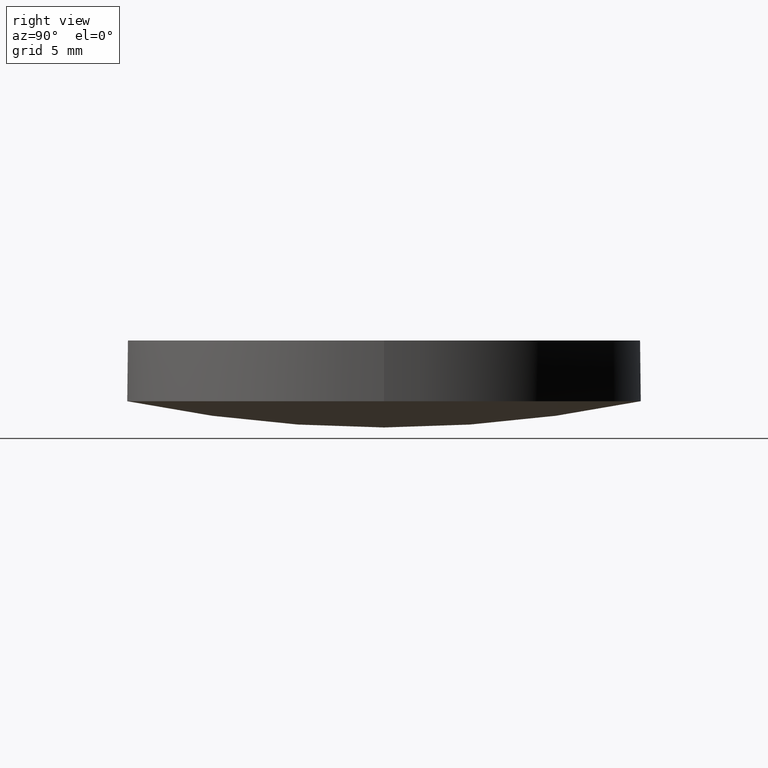
[diagram: clean part render]
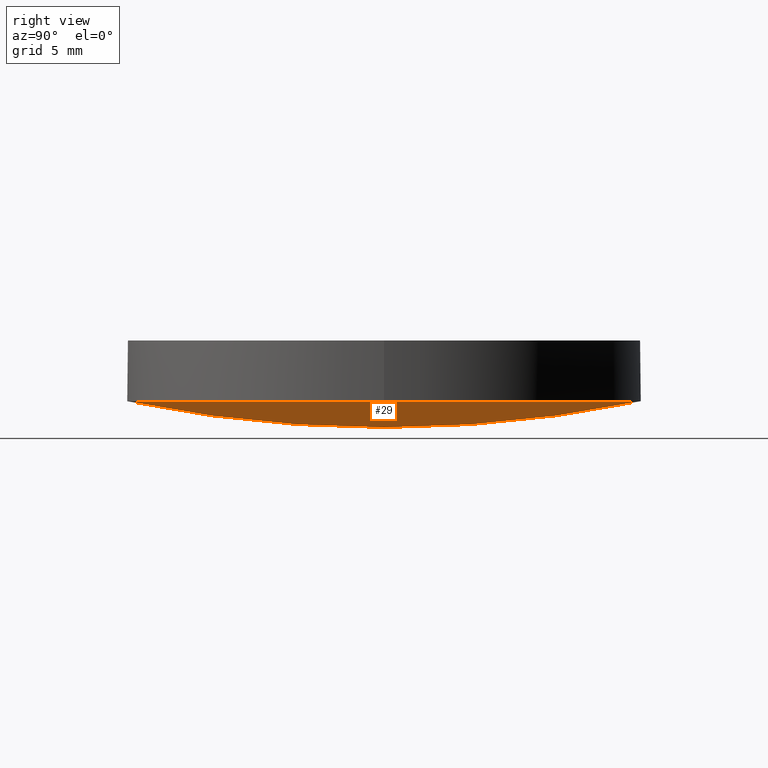
[diagram: same view with one face highlighted and labeled with its STEP entity id]
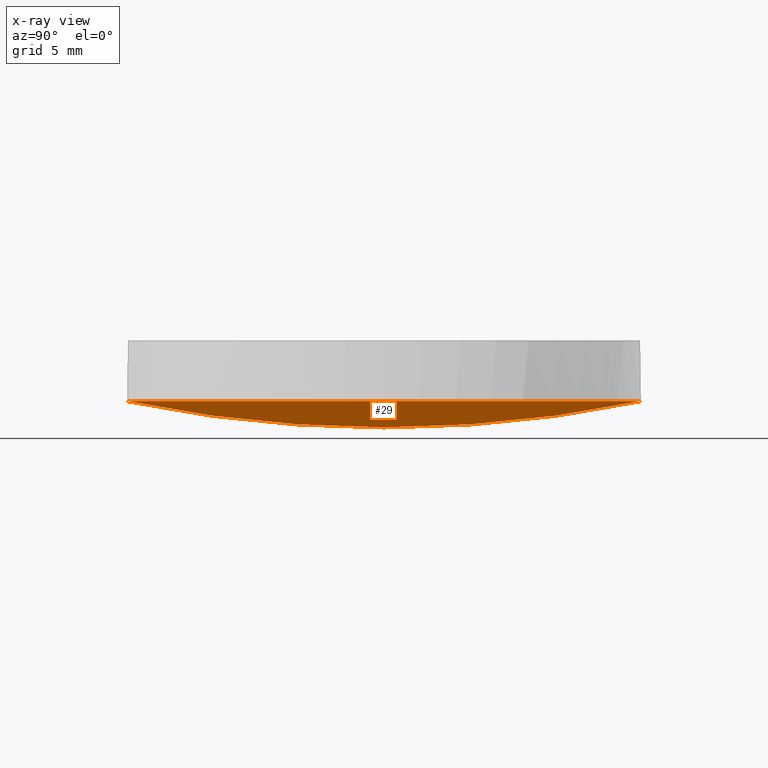
[diagram: x-ray of the same camera — body ghosted, the highlighted face saturated]
A machine part, right view. The second image highlights one B-rep face of the part: STEP entity #29.
The next image is the same camera in x-ray: the body ghosted, the highlighted face saturated — about 0% of this face is hidden behind the body in this view.
In plain terms, the highlighted face is a freeform B-spline surface patch.
Its self-contained STEP definition (entity closure, byte-faithful):
#7 = CARTESIAN_POINT ( 'NONE',  ( 12.86670321370419300, 4.344821375919631900, 0.8741130607796222500 ) ) ;
#8 = CARTESIAN_POINT ( 'NONE',  ( 8.630658128819243700, 4.344821375919631900, -0.006888369954442329100 ) ) ;
#11 = DIRECTION ( 'NONE',  ( 1.000000000000000000, 0.0000000000000000000, 0.0000000000000000000 ) ) ;
#12 = EDGE_CURVE ( 'NONE', #108, #137, #89, .T. ) ;
#28 = CARTESIAN_POINT ( 'NONE',  ( 4.204824670683206200, -12.85024539458808100, 1.330075775174029300 ) ) ;
#29 = ADVANCED_FACE ( 'NONE', ( #171 ), #82, .T. ) ;
#32 = CARTESIAN_POINT ( 'NONE',  ( 4.204824670683206200, 12.85024539458807300, 1.330075775174029300 ) ) ;
#42 = CIRCLE ( 'NONE', #166, 12.69999999999999900 ) ;
#43 = EDGE_CURVE ( 'NONE', #76, #108, #42, .T. ) ;
#44 = CARTESIAN_POINT ( 'NONE',  ( 4.326689436755716000, -4.344821375919638100, -0.4497144982151697300 ) ) ;
#46 = CARTESIAN_POINT ( 'NONE',  ( 8.630658128819243700, -4.344821375919638100, -0.006888369954443414100 ) ) ;
#52 = CARTESIAN_POINT ( 'NONE',  ( 7.105427357601000300E-015, 0.0000000000000000000, 62.74000000000000200 ) ) ;
#53 = CARTESIAN_POINT ( 'NONE',  ( 12.69999999999999900, 2.442490654175340100E-015, 1.298828136175660200 ) ) ;
#56 = AXIS2_PLACEMENT_3D ( 'NONE', #111, #65, #132 ) ;
#65 = DIRECTION ( 'NONE',  ( -0.0000000000000000000, -0.0000000000000000000, -1.000000000000000000 ) ) ;
#66 = CARTESIAN_POINT ( 'NONE',  ( 8.387568545133055100, 12.85024539458807300, 1.760429341370824700 ) ) ;
#68 = CARTESIAN_POINT ( 'NONE',  ( 7.105427357600998700E-015, -12.70000000000000300, 1.298828136175658200 ) ) ;
#72 = ORIENTED_EDGE ( 'NONE', *, *, #159, .T. ) ;
#76 = VERTEX_POINT ( 'NONE', #197 ) ;
#81 = ORIENTED_EDGE ( 'NONE', *, *, #12, .T. ) ;
#82 =( BOUNDED_SURFACE ( )  B_SPLINE_SURFACE ( 3, 3, ( 
 ( #151, #28, #131, #154 ),
 ( #173, #44, #46, #207 ),
 ( #113, #152, #8, #7 ),
 ( #172, #32, #66, #223 ) ),
 .UNSPECIFIED., .F., .F., .F. ) 
 B_SPLINE_SURFACE_WITH_KNOTS ( ( 4, 4 ),
 ( 4, 4 ),
 ( 0.0000000000000000000, 1.000000000000000000 ),
 ( 0.0000000000000000000, 1.000000000000000000 ),
 .UNSPECIFIED. ) 
 GEOMETRIC_REPRESENTATION_ITEM ( )  RATIONAL_B_SPLINE_SURFACE ( (
 ( 1.000000000000000000, 0.9964991332635425600, 0.9964991332635425600, 1.000000000000000000),
 ( 0.9858667965659968500, 0.9824154082913211200, 0.9824154082913211200, 0.9858667965659968500),
 ( 0.9858667965659968500, 0.9824154082913211200, 0.9824154082913211200, 0.9858667965659968500),
 ( 1.000000000000000000, 0.9964991332635425600, 0.9964991332635425600, 1.000000000000000000) ) ) 
 REPRESENTATION_ITEM ( '' )  SURFACE ( )  );
#89 = CIRCLE ( 'NONE', #56, 12.69999999999999900 ) ;
#108 = VERTEX_POINT ( 'NONE', #53 ) ;
#111 = CARTESIAN_POINT ( 'NONE',  ( 4.996003610813200500E-016, 2.442490654175340100E-015, 1.298828136175660200 ) ) ;
#113 = CARTESIAN_POINT ( 'NONE',  ( 7.105427357600999500E-015, 4.344821375919631900, -0.4497144982151686800 ) ) ;
#131 = CARTESIAN_POINT ( 'NONE',  ( 8.387568545133055100, -12.85024539458808100, 1.760429341370824700 ) ) ;
#132 = DIRECTION ( 'NONE',  ( 1.000000000000000000, 0.0000000000000000000, 0.0000000000000000000 ) ) ;
#137 = VERTEX_POINT ( 'NONE', #68 ) ;
#139 = CARTESIAN_POINT ( 'NONE',  ( 4.996003610813200500E-016, 2.442490654175340100E-015, 1.298828136175660200 ) ) ;
#151 = CARTESIAN_POINT ( 'NONE',  ( 7.105427357600998700E-015, -12.85024539458808200, 1.330075775174029100 ) ) ;
#152 = CARTESIAN_POINT ( 'NONE',  ( 4.326689436755716000, 4.344821375919631900, -0.4497144982151686800 ) ) ;
#154 = CARTESIAN_POINT ( 'NONE',  ( 12.50430193665802000, -12.85024539458808200, 2.616616642309972400 ) ) ;
#159 = EDGE_CURVE ( 'NONE', #137, #76, #192, .T. ) ;
#166 = AXIS2_PLACEMENT_3D ( 'NONE', #139, #194, #228 ) ;
#171 = FACE_OUTER_BOUND ( 'NONE', #212, .T. ) ;
#172 = CARTESIAN_POINT ( 'NONE',  ( 7.105427357600998700E-015, 12.85024539458807500, 1.330075775174029100 ) ) ;
#173 = CARTESIAN_POINT ( 'NONE',  ( 7.105427357600999500E-015, -4.344821375919638100, -0.4497144982151697300 ) ) ;
#178 = DIRECTION ( 'NONE',  ( 0.0000000000000000000, -1.000000000000000000, 0.0000000000000000000 ) ) ;
#192 = CIRCLE ( 'NONE', #217, 62.74000000000000200 ) ;
#194 = DIRECTION ( 'NONE',  ( -0.0000000000000000000, -0.0000000000000000000, -1.000000000000000000 ) ) ;
#197 = CARTESIAN_POINT ( 'NONE',  ( 7.105427357600998700E-015, 12.70000000000000300, 1.298828136175658200 ) ) ;
#207 = CARTESIAN_POINT ( 'NONE',  ( 12.86670321370419300, -4.344821375919638100, 0.8741130607796211400 ) ) ;
#212 = EDGE_LOOP ( 'NONE', ( #81, #72, #221 ) ) ;
#217 = AXIS2_PLACEMENT_3D ( 'NONE', #52, #11, #178 ) ;
#221 = ORIENTED_EDGE ( 'NONE', *, *, #43, .T. ) ;
#223 = CARTESIAN_POINT ( 'NONE',  ( 12.50430193665802000, 12.85024539458807500, 2.616616642309972400 ) ) ;
#228 = DIRECTION ( 'NONE',  ( 1.000000000000000000, -1.776356839400250500E-015, 0.0000000000000000000 ) ) ;